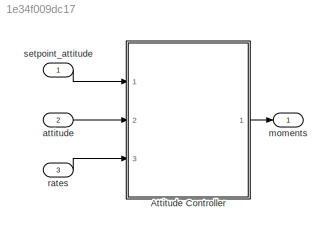
MODEL slx_1e34f009dc17
KIND model
CONFIG AbsTol = auto
CONFIG FixedStep = sample_time
CONFIG InitFcn = Parameters_quadrotor\nParameters_controllers
CONFIG MaxStep = auto
CONFIG MinStep = auto
CONFIG RelTol = 1e-3
CONFIG SampleTimeConstraint = Unconstrained
CONFIG Solver = ode2
CONFIG SolverMode = Auto
CONFIG SolverName = ode2
CONFIG StartTime = 0.0
CONFIG StopTime = 10.0
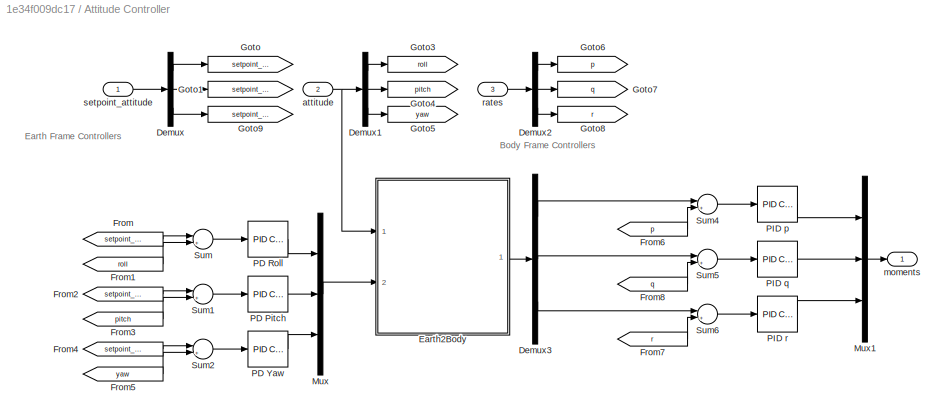
BLOCK [SubSystem] Attitude Controller
  Ports = [3, 1]
  RequestExecContextInheritance = off
  Variant = off
BLOCK [Demux] Attitude Controller/Demux
  DisplayOption = bar
  Outputs = 3
  Ports = [1, 3]
BLOCK [Demux] Attitude Controller/Demux1
  DisplayOption = bar
  Outputs = 3
  Ports = [1, 3]
BLOCK [Demux] Attitude Controller/Demux2
  DisplayOption = bar
  Outputs = 3
  Ports = [1, 3]
BLOCK [Demux] Attitude Controller/Demux3
  DisplayOption = bar
  Outputs = 3
  Ports = [1, 3]
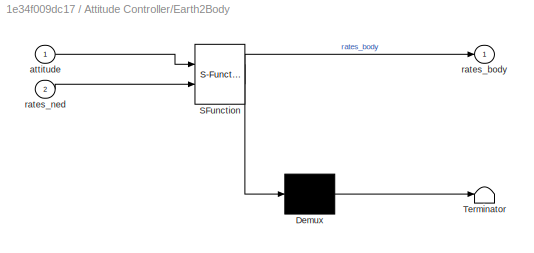
BLOCK [SubSystem] Attitude Controller/Earth2Body
  ErrorFcn = Stateflow.Translate.translate
  PermitHierarchicalResolution = ExplicitOnly
  Ports = [2, 1]
  RequestExecContextInheritance = off
  SFBlockType = MATLAB Function
  TreatAsAtomicUnit = on
  Variant = off
BLOCK [Demux] Attitude Controller/Earth2Body/ Demux 
  Outputs = 1
  Ports = [1, 1]
BLOCK [S-Function] Attitude Controller/Earth2Body/ SFunction 
  EnableBusSupport = on
  FunctionName = sf_sfun
  PortCounts = [2 2]
  Ports = [2, 2]
  SFunctionDeploymentMode = off
  Tag = Stateflow S-Function Attitude 4
BLOCK [Terminator] Attitude Controller/Earth2Body/ Terminator 
BLOCK [Inport] Attitude Controller/Earth2Body/attitude
  IconDisplay = Port number
BLOCK [Outport] Attitude Controller/Earth2Body/rates_body
  IconDisplay = Port number
BLOCK [Inport] Attitude Controller/Earth2Body/rates_ned
  IconDisplay = Port number
  Port = 2
BLOCK [From] Attitude Controller/From
  GotoTag = setpoint_roll
BLOCK [From] Attitude Controller/From1
  GotoTag = roll
BLOCK [From] Attitude Controller/From2
  GotoTag = setpoint_pitch
BLOCK [From] Attitude Controller/From3
  GotoTag = pitch
BLOCK [From] Attitude Controller/From4
  GotoTag = setpoint_yaw
BLOCK [From] Attitude Controller/From5
  GotoTag = yaw
BLOCK [From] Attitude Controller/From6
  GotoTag = p
BLOCK [From] Attitude Controller/From7
  GotoTag = r
BLOCK [From] Attitude Controller/From8
  GotoTag = q
BLOCK [Goto] Attitude Controller/Goto
  GotoTag = setpoint_roll
BLOCK [Goto] Attitude Controller/Goto1
  GotoTag = setpoint_pitch
BLOCK [Goto] Attitude Controller/Goto3
  GotoTag = roll
BLOCK [Goto] Attitude Controller/Goto4
  GotoTag = pitch
BLOCK [Goto] Attitude Controller/Goto5
  GotoTag = yaw
BLOCK [Goto] Attitude Controller/Goto6
  GotoTag = p
BLOCK [Goto] Attitude Controller/Goto7
  GotoTag = q
BLOCK [Goto] Attitude Controller/Goto8
  GotoTag = r
BLOCK [Goto] Attitude Controller/Goto9
  GotoTag = setpoint_yaw
BLOCK [Mux] Attitude Controller/Mux
  DisplayOption = bar
  Inputs = 3
  Ports = [3, 1]
BLOCK [Mux] Attitude Controller/Mux1
  DisplayOption = bar
  Inputs = 3
  Ports = [3, 1]
BLOCK [Reference] Attitude Controller/PD Pitch  REF=simulink/Continuous/PID Controller
  Ports = [1, 1]
  SourceBlock = simulink/Continuous/PID Controller
  SourceType = PID 1dof
BLOCK [Reference] Attitude Controller/PD Roll  REF=simulink/Continuous/PID Controller
  Ports = [1, 1]
  SourceBlock = simulink/Continuous/PID Controller
  SourceType = PID 1dof
BLOCK [Reference] Attitude Controller/PD Yaw  REF=simulink/Continuous/PID Controller
  Ports = [1, 1]
  SourceBlock = simulink/Continuous/PID Controller
  SourceType = PID 1dof
BLOCK [Reference] Attitude Controller/PID p  REF=simulink/Continuous/PID Controller
  Ports = [1, 1]
  SourceBlock = simulink/Continuous/PID Controller
  SourceType = PID 1dof
BLOCK [Reference] Attitude Controller/PID q  REF=simulink/Continuous/PID Controller
  Ports = [1, 1]
  SourceBlock = simulink/Continuous/PID Controller
  SourceType = PID 1dof
BLOCK [Reference] Attitude Controller/PID r  REF=simulink/Continuous/PID Controller
  Ports = [1, 1]
  SourceBlock = simulink/Continuous/PID Controller
  SourceType = PID 1dof
BLOCK [Sum] Attitude Controller/Sum
  IconShape = round
  InputSameDT = off
  Inputs = |+-
  OutDataTypeStr = Inherit: Inherit via internal rule
  Ports = [2, 1]
  SaturateOnIntegerOverflow = off
BLOCK [Sum] Attitude Controller/Sum1
  IconShape = round
  InputSameDT = off
  Inputs = |+-
  OutDataTypeStr = Inherit: Inherit via internal rule
  Ports = [2, 1]
  SaturateOnIntegerOverflow = off
BLOCK [Sum] Attitude Controller/Sum2
  IconShape = round
  InputSameDT = off
  Inputs = |+-
  OutDataTypeStr = Inherit: Inherit via internal rule
  Ports = [2, 1]
  SaturateOnIntegerOverflow = off
BLOCK [Sum] Attitude Controller/Sum4
  IconShape = round
  InputSameDT = off
  Inputs = |+-
  OutDataTypeStr = Inherit: Inherit via internal rule
  Ports = [2, 1]
  SaturateOnIntegerOverflow = off
BLOCK [Sum] Attitude Controller/Sum5
  IconShape = round
  InputSameDT = off
  Inputs = |+-
  OutDataTypeStr = Inherit: Inherit via internal rule
  Ports = [2, 1]
  SaturateOnIntegerOverflow = off
BLOCK [Sum] Attitude Controller/Sum6
  IconShape = round
  InputSameDT = off
  Inputs = |+-
  OutDataTypeStr = Inherit: Inherit via internal rule
  Ports = [2, 1]
  SaturateOnIntegerOverflow = off
BLOCK [Inport] Attitude Controller/attitude
  IconDisplay = Port number
  Port = 2
BLOCK [Outport] Attitude Controller/moments
  IconDisplay = Port number
BLOCK [Inport] Attitude Controller/rates
  IconDisplay = Port number
  Port = 3
BLOCK [Inport] Attitude Controller/setpoint_attitude
  IconDisplay = Port number
BLOCK [Inport] attitude
  IconDisplay = Port number
  Port = 2
BLOCK [Outport] moments
  IconDisplay = Port number
BLOCK [Inport] rates
  IconDisplay = Port number
  Port = 3
BLOCK [Inport] setpoint_attitude
  IconDisplay = Port number
  PortDimensions = 3
ANNOTATION Attitude Controller: Body Frame Controllers
ANNOTATION Attitude Controller: Earth Frame Controllers
LINE Attitude Controller/Demux1:1 -> Attitude Controller/Goto3:1
LINE Attitude Controller/Demux1:2 -> Attitude Controller/Goto4:1
LINE Attitude Controller/Demux1:3 -> Attitude Controller/Goto5:1
LINE Attitude Controller/Demux2:1 -> Attitude Controller/Goto6:1
LINE Attitude Controller/Demux2:2 -> Attitude Controller/Goto7:1
LINE Attitude Controller/Demux2:3 -> Attitude Controller/Goto8:1
LINE Attitude Controller/Demux3:1 -> Attitude Controller/Sum4:1
LINE Attitude Controller/Demux3:2 -> Attitude Controller/Sum5:1
LINE Attitude Controller/Demux3:3 -> Attitude Controller/Sum6:1
LINE Attitude Controller/Demux:1 -> Attitude Controller/Goto:1
LINE Attitude Controller/Demux:2 -> Attitude Controller/Goto1:1
LINE Attitude Controller/Demux:3 -> Attitude Controller/Goto9:1
LINE Attitude Controller/Earth2Body:1 -> Attitude Controller/Demux3:1
LINE Attitude Controller/From1:1 -> Attitude Controller/Sum:2
LINE Attitude Controller/From2:1 -> Attitude Controller/Sum1:1
LINE Attitude Controller/From3:1 -> Attitude Controller/Sum1:2
LINE Attitude Controller/From4:1 -> Attitude Controller/Sum2:1
LINE Attitude Controller/From5:1 -> Attitude Controller/Sum2:2
LINE Attitude Controller/From6:1 -> Attitude Controller/Sum4:2
LINE Attitude Controller/From7:1 -> Attitude Controller/Sum6:2
LINE Attitude Controller/From8:1 -> Attitude Controller/Sum5:2
LINE Attitude Controller/From:1 -> Attitude Controller/Sum:1
LINE Attitude Controller/Mux1:1 -> Attitude Controller/moments:1
LINE Attitude Controller/Mux:1 -> Attitude Controller/Earth2Body:2
LINE Attitude Controller/PD Pitch:1 -> Attitude Controller/Mux:2
LINE Attitude Controller/PD Roll:1 -> Attitude Controller/Mux:1
LINE Attitude Controller/PD Yaw:1 -> Attitude Controller/Mux:3
LINE Attitude Controller/PID p:1 -> Attitude Controller/Mux1:1
LINE Attitude Controller/PID q:1 -> Attitude Controller/Mux1:2
LINE Attitude Controller/PID r:1 -> Attitude Controller/Mux1:3
LINE Attitude Controller/Sum1:1 -> Attitude Controller/PD Pitch:1
LINE Attitude Controller/Sum2:1 -> Attitude Controller/PD Yaw:1
LINE Attitude Controller/Sum4:1 -> Attitude Controller/PID p:1
LINE Attitude Controller/Sum5:1 -> Attitude Controller/PID q:1
LINE Attitude Controller/Sum6:1 -> Attitude Controller/PID r:1
LINE Attitude Controller/Sum:1 -> Attitude Controller/PD Roll:1
NET Attitude Controller/attitude:1 -> Attitude Controller/Demux1:1, Attitude Controller/Earth2Body:1
LINE Attitude Controller/rates:1 -> Attitude Controller/Demux2:1
LINE Attitude Controller/setpoint_attitude:1 -> Attitude Controller/Demux:1
LINE Attitude Controller:1 -> moments:1
LINE attitude:1 -> Attitude Controller:2
LINE rates:1 -> Attitude Controller:3
LINE setpoint_attitude:1 -> Attitude Controller:1
note: NET lines group one-source signal fan-out (src -> all destinations, sorted); 1:1 wires keep LINE
CHART Attitude Controller/Earth2Body states=1 transitions=1
  STATE_LABEL 'eML_blk_kernel()'
  STATE_LABEL 'SCRIPT:\n function rates_body = ned2body(attitude, rates_ned)\n\nphi = attitude(1);\ntheta = attitude(2);\n\nSphi = sin(phi);\nCphi = cos(phi);\nStheta = sin(theta);\nCtheta = cos(theta);\n\nned2body = [1      0        -Stheta   ;\n     0     Cphi    Sphi*Ctheta ;\n     0    -Sphi    Cphi*Ctheta];\n\nrates_body = ned2body* rates_ned;'
